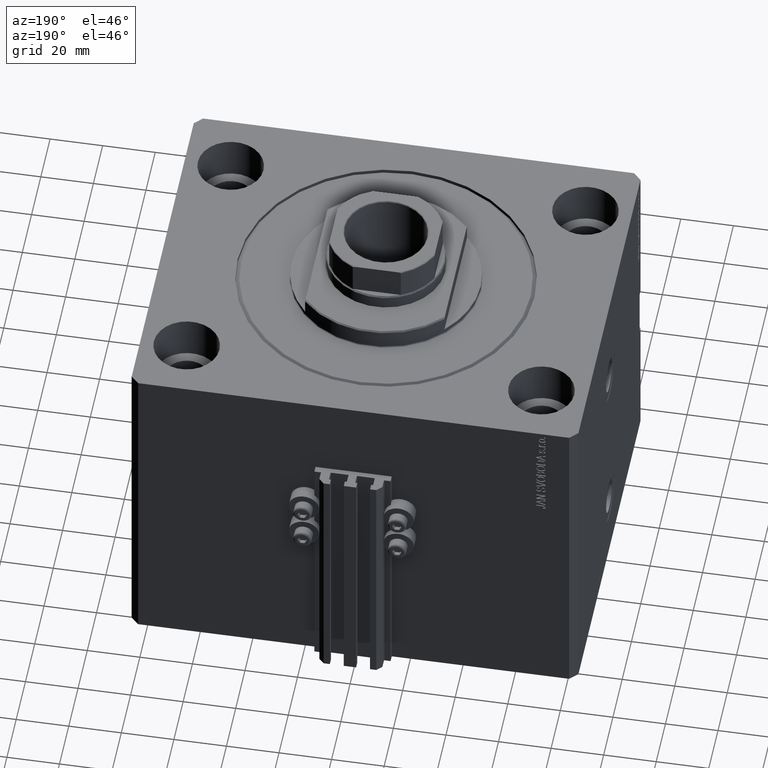
[diagram: clean part render]
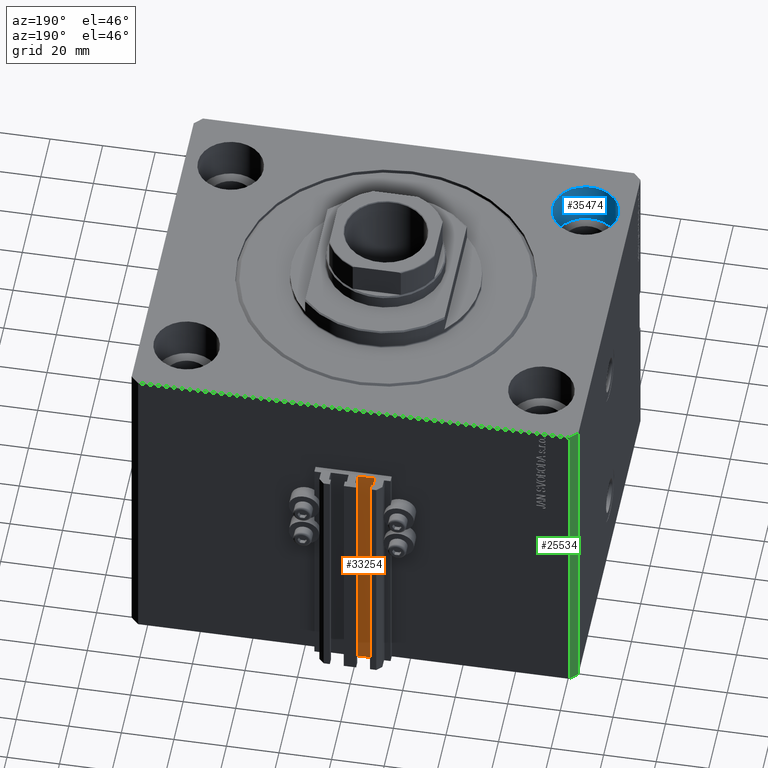
[diagram: same view with three faces highlighted in distinct colors, each labeled with its STEP entity id]
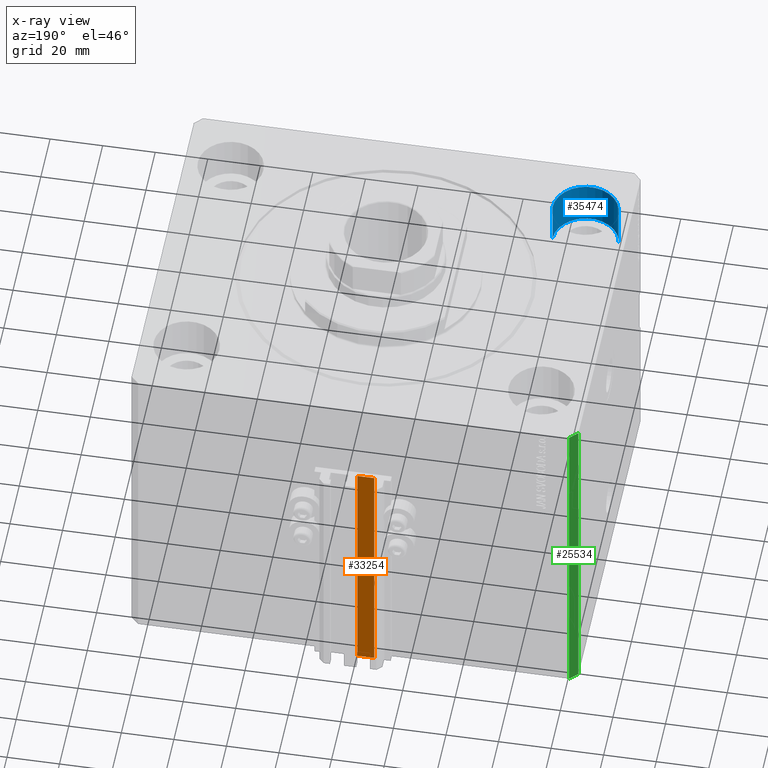
[diagram: x-ray of the same camera — body ghosted, the three highlighted faces saturated]
A machine part, auxiliary view with three faces highlighted in distinct colors.
The next image is the same camera in x-ray (body ghosted, the three faces saturated) — at least one of them is partly hidden behind the body in this view.
Their STEP definitions:

[orange] entity #33254 — the highlighted planar face has unit normal (0, 1, 0).
#1684 = ORIENTED_EDGE ( 'NONE', *, *, #4883, .T. ) ;
#2183 = VECTOR ( 'NONE', #11912, 1000.000000000000000 ) ;
#2370 = VECTOR ( 'NONE', #46830, 1000.000000000000000 ) ;
#3441 = EDGE_CURVE ( 'NONE', #4754, #23310, #39220, .T. ) ;
#4754 = VERTEX_POINT ( 'NONE', #43106 ) ;
#4883 = EDGE_CURVE ( 'NONE', #26834, #40884, #14429, .T. ) ;
#5925 = CARTESIAN_POINT ( 'NONE',  ( -1.800000000000000933, 72.00000000000001421, -130.0000000000000000 ) ) ;
#9155 = ORIENTED_EDGE ( 'NONE', *, *, #34910, .F. ) ;
#11912 = DIRECTION ( 'NONE',  ( -1.000000000000000000, 0.000000000000000000, 0.000000000000000000 ) ) ;
#12319 = DIRECTION ( 'NONE',  ( 0.000000000000000000, 1.000000000000000000, -0.000000000000000000 ) ) ;
#12573 = PLANE ( 'NONE',  #14963 ) ;
#14429 = LINE ( 'NONE', #25686, #26643 ) ;
#14963 = AXIS2_PLACEMENT_3D ( 'NONE', #27244, #12319, #19908 ) ;
#17496 = ORIENTED_EDGE ( 'NONE', *, *, #40839, .T. ) ;
#17764 = DIRECTION ( 'NONE',  ( -1.000000000000000000, 0.000000000000000000, 0.000000000000000000 ) ) ;
#19493 = CARTESIAN_POINT ( 'NONE',  ( -8.199999999999997513, 72.00000000000001421, -33.00000000000000000 ) ) ;
#19908 = DIRECTION ( 'NONE',  ( 0.000000000000000000, 0.000000000000000000, 1.000000000000000000 ) ) ;
#21438 = CARTESIAN_POINT ( 'NONE',  ( -1.800000000000000933, 72.00000000000001421, -33.00000000000000000 ) ) ;
#22732 = ORIENTED_EDGE ( 'NONE', *, *, #3441, .F. ) ;
#23310 = VERTEX_POINT ( 'NONE', #30553 ) ;
#24299 = CARTESIAN_POINT ( 'NONE',  ( -8.199999999999997513, 72.00000000000001421, -130.0000000000000000 ) ) ;
#25590 = LINE ( 'NONE', #21438, #47352 ) ;
#25686 = CARTESIAN_POINT ( 'NONE',  ( -8.199999999999997513, 72.00000000000001421, -130.0000000000000000 ) ) ;
#26521 = EDGE_LOOP ( 'NONE', ( #9155, #22732, #17496, #1684 ) ) ;
#26643 = VECTOR ( 'NONE', #41107, 1000.000000000000000 ) ;
#26834 = VERTEX_POINT ( 'NONE', #24299 ) ;
#27244 = CARTESIAN_POINT ( 'NONE',  ( -1.800000000000000933, 72.00000000000001421, -130.0000000000000000 ) ) ;
#30553 = CARTESIAN_POINT ( 'NONE',  ( -1.800000000000000933, 72.00000000000001421, -33.00000000000000000 ) ) ;
#31402 = FACE_OUTER_BOUND ( 'NONE', #26521, .T. ) ;
#33254 = ADVANCED_FACE ( 'NONE', ( #31402 ), #12573, .T. ) ;
#34910 = EDGE_CURVE ( 'NONE', #23310, #40884, #25590, .T. ) ;
#37838 = LINE ( 'NONE', #45213, #2183 ) ;
#39220 = LINE ( 'NONE', #5925, #2370 ) ;
#40839 = EDGE_CURVE ( 'NONE', #4754, #26834, #37838, .T. ) ;
#40884 = VERTEX_POINT ( 'NONE', #19493 ) ;
#41107 = DIRECTION ( 'NONE',  ( 0.000000000000000000, 0.000000000000000000, 1.000000000000000000 ) ) ;
#43106 = CARTESIAN_POINT ( 'NONE',  ( -1.800000000000000933, 72.00000000000001421, -130.0000000000000000 ) ) ;
#45213 = CARTESIAN_POINT ( 'NONE',  ( -1.800000000000000933, 72.00000000000001421, -130.0000000000000000 ) ) ;
#46830 = DIRECTION ( 'NONE',  ( 0.000000000000000000, 0.000000000000000000, 1.000000000000000000 ) ) ;
#47352 = VECTOR ( 'NONE', #17764, 1000.000000000000000 ) ;

[blue] entity #35474 — the highlighted cylindrical surface (edge-blend (fillet) strip) has radius 12.5 mm, axis along (0, 0, 1).
#1312 = ORIENTED_EDGE ( 'NONE', *, *, #19459, .F. ) ;
#2714 = DIRECTION ( 'NONE',  ( -0.000000000000000000, -0.000000000000000000, 1.000000000000000000 ) ) ;
#3680 = LINE ( 'NONE', #24977, #5189 ) ;
#5189 = VECTOR ( 'NONE', #43599, 1000.000000000000000 ) ;
#5323 = VERTEX_POINT ( 'NONE', #14014 ) ;
#5440 = DIRECTION ( 'NONE',  ( 1.000000000000000000, 0.000000000000000000, 0.000000000000000000 ) ) ;
#6656 = AXIS2_PLACEMENT_3D ( 'NONE', #42634, #9082, #24014 ) ;
#6831 = AXIS2_PLACEMENT_3D ( 'NONE', #20128, #8637, #5440 ) ;
#8637 = DIRECTION ( 'NONE',  ( 0.000000000000000000, 0.000000000000000000, 1.000000000000000000 ) ) ;
#9082 = DIRECTION ( 'NONE',  ( 0.000000000000000000, 0.000000000000000000, 1.000000000000000000 ) ) ;
#9727 = CARTESIAN_POINT ( 'NONE',  ( -55.00000000000000711, -47.50000000000000000, 0.000000000000000000 ) ) ;
#9931 = CIRCLE ( 'NONE', #6831, 12.49999999999999645 ) ;
#12598 = CARTESIAN_POINT ( 'NONE',  ( -55.00000000000000711, -47.50000000000000000, -17.00000000000000000 ) ) ;
#12972 = VERTEX_POINT ( 'NONE', #45583 ) ;
#13962 = EDGE_CURVE ( 'NONE', #12972, #42835, #46545, .T. ) ;
#14014 = CARTESIAN_POINT ( 'NONE',  ( -80.00000000000000000, -47.50000000000000000, -17.00000000000000000 ) ) ;
#17542 = EDGE_CURVE ( 'NONE', #5323, #12972, #3680, .T. ) ;
#17638 = DIRECTION ( 'NONE',  ( 1.000000000000000000, 0.000000000000000000, 0.000000000000000000 ) ) ;
#17792 = VERTEX_POINT ( 'NONE', #42824 ) ;
#19459 = EDGE_CURVE ( 'NONE', #5323, #17792, #9931, .T. ) ;
#20128 = CARTESIAN_POINT ( 'NONE',  ( -67.50000000000000000, -47.50000000000000000, -17.00000000000000000 ) ) ;
#21465 = EDGE_LOOP ( 'NONE', ( #1312, #41284, #41850, #27181 ) ) ;
#24014 = DIRECTION ( 'NONE',  ( 1.000000000000000000, 0.000000000000000000, 0.000000000000000000 ) ) ;
#24739 = CYLINDRICAL_SURFACE ( 'NONE', #41081, 12.49999999999999645 ) ;
#24977 = CARTESIAN_POINT ( 'NONE',  ( -80.00000000000000000, -47.50000000000000000, -17.00000000000000000 ) ) ;
#27181 = ORIENTED_EDGE ( 'NONE', *, *, #31375, .F. ) ;
#27753 = LINE ( 'NONE', #12598, #43843 ) ;
#28640 = FACE_OUTER_BOUND ( 'NONE', #21465, .T. ) ;
#31375 = EDGE_CURVE ( 'NONE', #17792, #42835, #27753, .T. ) ;
#34858 = DIRECTION ( 'NONE',  ( -0.000000000000000000, -0.000000000000000000, 1.000000000000000000 ) ) ;
#35474 = ADVANCED_FACE ( 'NONE', ( #28640 ), #24739, .F. ) ;
#36240 = CARTESIAN_POINT ( 'NONE',  ( -67.50000000000000000, -47.50000000000000000, -17.00000000000000000 ) ) ;
#41081 = AXIS2_PLACEMENT_3D ( 'NONE', #36240, #2714, #17638 ) ;
#41284 = ORIENTED_EDGE ( 'NONE', *, *, #17542, .T. ) ;
#41850 = ORIENTED_EDGE ( 'NONE', *, *, #13962, .T. ) ;
#42634 = CARTESIAN_POINT ( 'NONE',  ( -67.50000000000000000, -47.50000000000000000, 0.000000000000000000 ) ) ;
#42824 = CARTESIAN_POINT ( 'NONE',  ( -55.00000000000000711, -47.50000000000000000, -17.00000000000000000 ) ) ;
#42835 = VERTEX_POINT ( 'NONE', #9727 ) ;
#43599 = DIRECTION ( 'NONE',  ( -0.000000000000000000, -0.000000000000000000, 1.000000000000000000 ) ) ;
#43843 = VECTOR ( 'NONE', #34858, 1000.000000000000000 ) ;
#45583 = CARTESIAN_POINT ( 'NONE',  ( -80.00000000000000000, -47.50000000000000000, 0.000000000000000000 ) ) ;
#46545 = CIRCLE ( 'NONE', #6656, 12.49999999999999645 ) ;

[green] entity #25534 — the highlighted planar face has unit normal (-0.7071, 0.7071, 0).
#120 = VERTEX_POINT ( 'NONE', #2809 ) ;
#710 = FACE_OUTER_BOUND ( 'NONE', #12465, .T. ) ;
#2809 = CARTESIAN_POINT ( 'NONE',  ( -82.00000000000000000, 70.00000000000000000, 0.000000000000000000 ) ) ;
#3841 = VERTEX_POINT ( 'NONE', #10562 ) ;
#4289 = LINE ( 'NONE', #19718, #27684 ) ;
#6068 = LINE ( 'NONE', #43301, #19513 ) ;
#6293 = VECTOR ( 'NONE', #40853, 1000.000000000000000 ) ;
#8702 = DIRECTION ( 'NONE',  ( -0.7071067811865474617, -0.7071067811865474617, 0.000000000000000000 ) ) ;
#9654 = EDGE_CURVE ( 'NONE', #120, #3841, #4289, .T. ) ;
#10562 = CARTESIAN_POINT ( 'NONE',  ( -85.00000000000000000, 67.00000000000000000, 0.000000000000000000 ) ) ;
#10986 = CARTESIAN_POINT ( 'NONE',  ( -85.00000000000000000, 67.00000000000000000, -130.0000000000000000 ) ) ;
#11976 = DIRECTION ( 'NONE',  ( -0.7071067811865474617, -0.7071067811865474617, 0.000000000000000000 ) ) ;
#12465 = EDGE_LOOP ( 'NONE', ( #35382, #18743, #23247, #45154 ) ) ;
#16169 = VERTEX_POINT ( 'NONE', #26005 ) ;
#18743 = ORIENTED_EDGE ( 'NONE', *, *, #42235, .F. ) ;
#19513 = VECTOR ( 'NONE', #20998, 1000.000000000000114 ) ;
#19718 = CARTESIAN_POINT ( 'NONE',  ( -82.00000000000000000, 70.00000000000000000, 0.000000000000000000 ) ) ;
#20418 = CARTESIAN_POINT ( 'NONE',  ( -82.00000000000000000, 70.00000000000000000, -130.0000000000000000 ) ) ;
#20998 = DIRECTION ( 'NONE',  ( -0.7071067811865474617, -0.7071067811865474617, 0.000000000000000000 ) ) ;
#23247 = ORIENTED_EDGE ( 'NONE', *, *, #25631, .T. ) ;
#25534 = ADVANCED_FACE ( 'NONE', ( #710 ), #30569, .T. ) ;
#25631 = EDGE_CURVE ( 'NONE', #45703, #16169, #6068, .T. ) ;
#26005 = CARTESIAN_POINT ( 'NONE',  ( -85.00000000000000000, 67.00000000000000000, -130.0000000000000000 ) ) ;
#27453 = LINE ( 'NONE', #34549, #32699 ) ;
#27684 = VECTOR ( 'NONE', #8702, 1000.000000000000114 ) ;
#28105 = AXIS2_PLACEMENT_3D ( 'NONE', #29598, #45537, #11976 ) ;
#29598 = CARTESIAN_POINT ( 'NONE',  ( -82.00000000000000000, 70.00000000000000000, -130.0000000000000000 ) ) ;
#30569 = PLANE ( 'NONE',  #28105 ) ;
#31552 = EDGE_CURVE ( 'NONE', #16169, #3841, #33247, .T. ) ;
#32699 = VECTOR ( 'NONE', #46322, 1000.000000000000000 ) ;
#33247 = LINE ( 'NONE', #10986, #6293 ) ;
#34549 = CARTESIAN_POINT ( 'NONE',  ( -82.00000000000000000, 70.00000000000000000, -130.0000000000000000 ) ) ;
#35382 = ORIENTED_EDGE ( 'NONE', *, *, #9654, .F. ) ;
#40853 = DIRECTION ( 'NONE',  ( 0.000000000000000000, 0.000000000000000000, 1.000000000000000000 ) ) ;
#42235 = EDGE_CURVE ( 'NONE', #45703, #120, #27453, .T. ) ;
#43301 = CARTESIAN_POINT ( 'NONE',  ( -82.00000000000000000, 70.00000000000000000, -130.0000000000000000 ) ) ;
#45154 = ORIENTED_EDGE ( 'NONE', *, *, #31552, .T. ) ;
#45537 = DIRECTION ( 'NONE',  ( -0.7071067811865475727, 0.7071067811865475727, 0.000000000000000000 ) ) ;
#45703 = VERTEX_POINT ( 'NONE', #20418 ) ;
#46322 = DIRECTION ( 'NONE',  ( 0.000000000000000000, 0.000000000000000000, 1.000000000000000000 ) ) ;